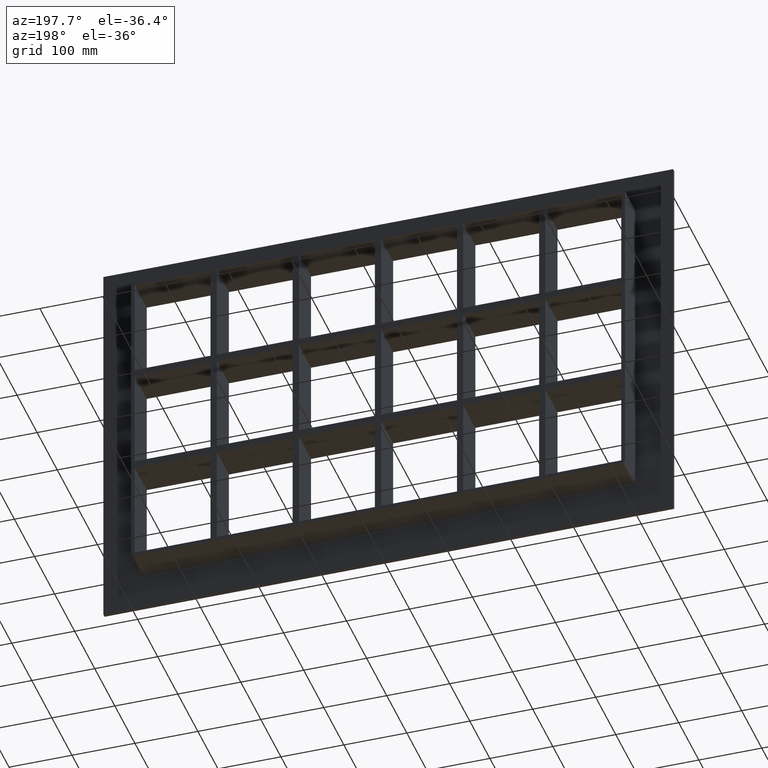
[diagram: clean part render]
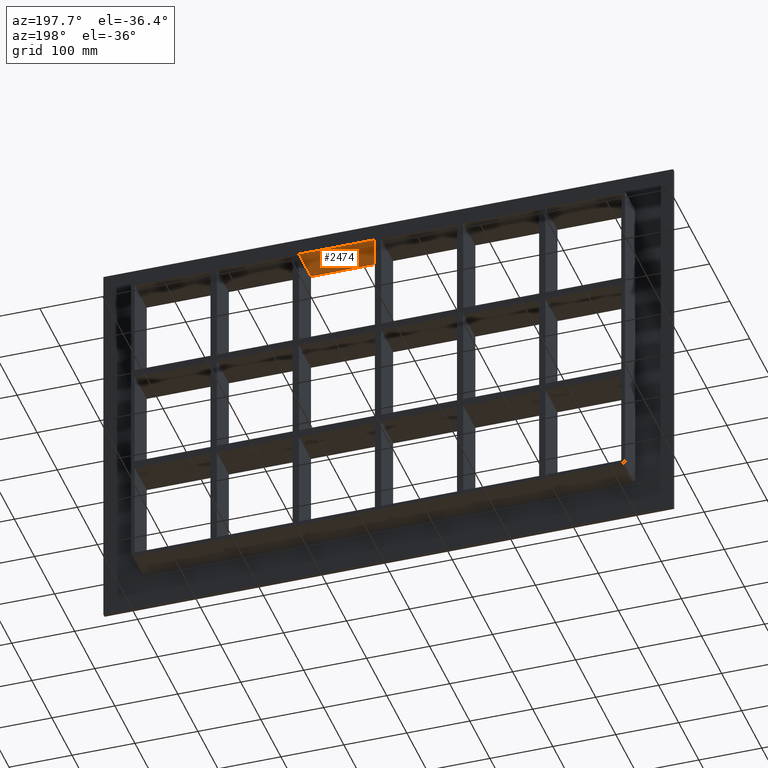
[diagram: same view with one face highlighted and labeled with its STEP entity id]
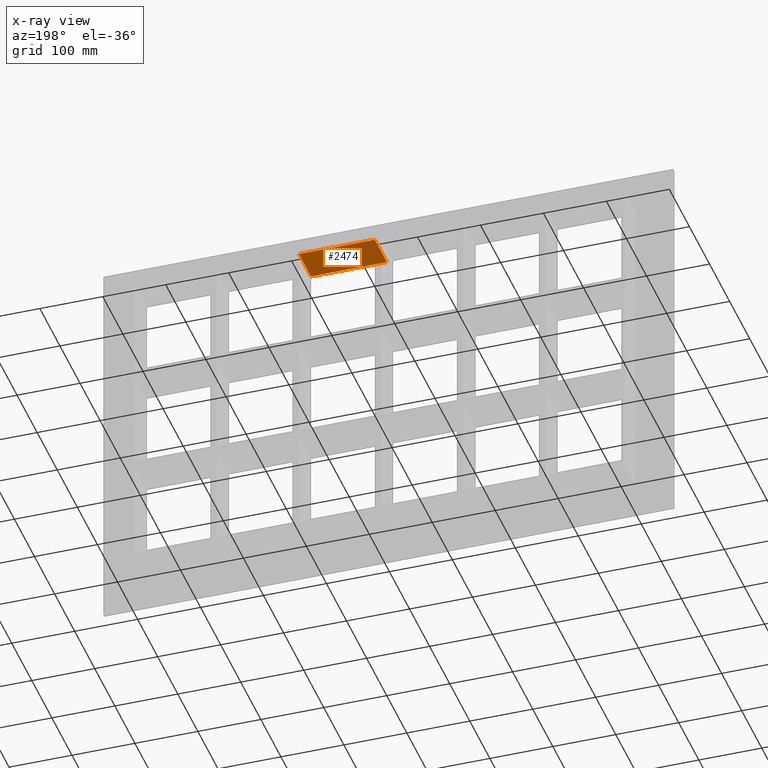
[diagram: x-ray of the same camera — body ghosted, the highlighted face saturated]
A machine part, auxiliary view. The second image highlights one B-rep face of the part: STEP entity #2474.
The next image is the same camera in x-ray: the body ghosted, the highlighted face saturated — about 0% of this face is hidden behind the body in this view.
In plain terms, the highlighted planar face has unit normal (0, 0, 1).
Its self-contained STEP definition (entity closure, byte-faithful):
#709=CARTESIAN_POINT('',(125.49999999999862,-3.0,251.25));
#710=VERTEX_POINT('',#709);
#717=CARTESIAN_POINT('',(125.49999999999862,57.0,251.25));
#718=VERTEX_POINT('',#717);
#719=CARTESIAN_POINT('',(125.49999999999862,57.000000000000007,251.25));
#720=DIRECTION('',(0.0,-1.0,0.0));
#721=VECTOR('',#720,60.000000000000007);
#722=LINE('',#719,#721);
#723=EDGE_CURVE('',#718,#710,#722,.T.);
#802=CARTESIAN_POINT('',(4.999999999996376,57.0,251.25));
#803=VERTEX_POINT('',#802);
#810=CARTESIAN_POINT('',(4.999999999996376,-3.0,251.25));
#811=VERTEX_POINT('',#810);
#812=CARTESIAN_POINT('',(4.999999999996376,-3.0,251.25));
#813=DIRECTION('',(0.0,1.0,0.0));
#814=VECTOR('',#813,60.000000000000007);
#815=LINE('',#812,#814);
#816=EDGE_CURVE('',#811,#803,#815,.T.);
#1098=CARTESIAN_POINT('',(125.49999999999864,57.0,251.25));
#1099=DIRECTION('',(-1.0,0.0,0.0));
#1100=VECTOR('',#1099,120.50000000000227);
#1101=LINE('',#1098,#1100);
#1102=EDGE_CURVE('',#718,#803,#1101,.T.);
#2164=CARTESIAN_POINT('',(4.999999999996362,-3.0,251.25));
#2165=DIRECTION('',(1.0,0.0,0.0));
#2166=VECTOR('',#2165,120.50000000000227);
#2167=LINE('',#2164,#2166);
#2168=EDGE_CURVE('',#811,#710,#2167,.T.);
#2463=CARTESIAN_POINT('',(-386.5,0.0,251.25));
#2464=DIRECTION('',(0.0,0.0,1.0));
#2465=DIRECTION('',(1.0,0.0,0.0));
#2466=AXIS2_PLACEMENT_3D('',#2463,#2464,#2465);
#2467=PLANE('',#2466);
#2468=ORIENTED_EDGE('',*,*,#723,.T.);
#2469=ORIENTED_EDGE('',*,*,#2168,.F.);
#2470=ORIENTED_EDGE('',*,*,#816,.T.);
#2471=ORIENTED_EDGE('',*,*,#1102,.F.);
#2472=EDGE_LOOP('',(#2468,#2469,#2470,#2471));
#2473=FACE_OUTER_BOUND('',#2472,.T.);
#2474=ADVANCED_FACE('',(#2473),#2467,.F.);